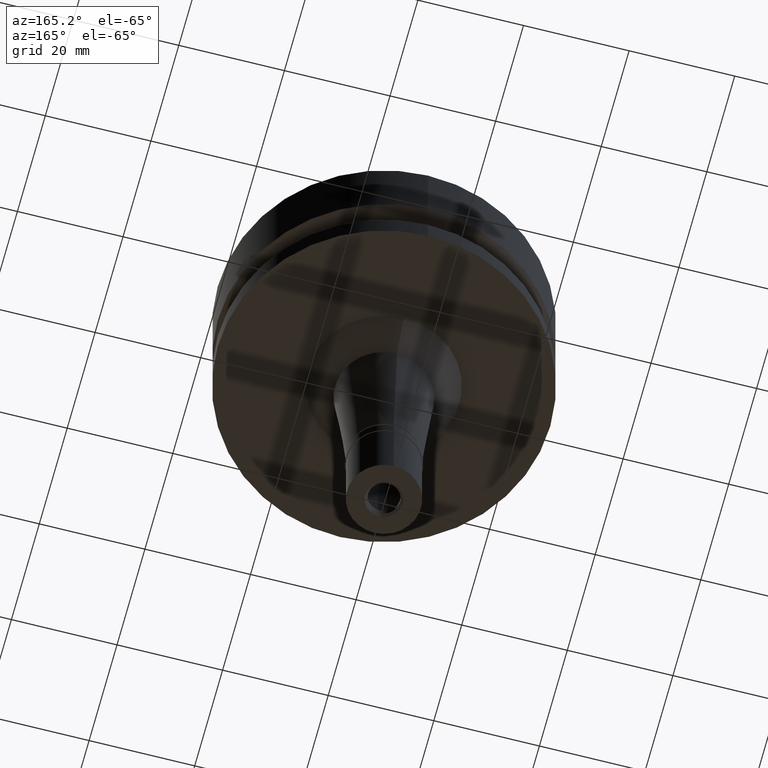
[diagram: clean part render]
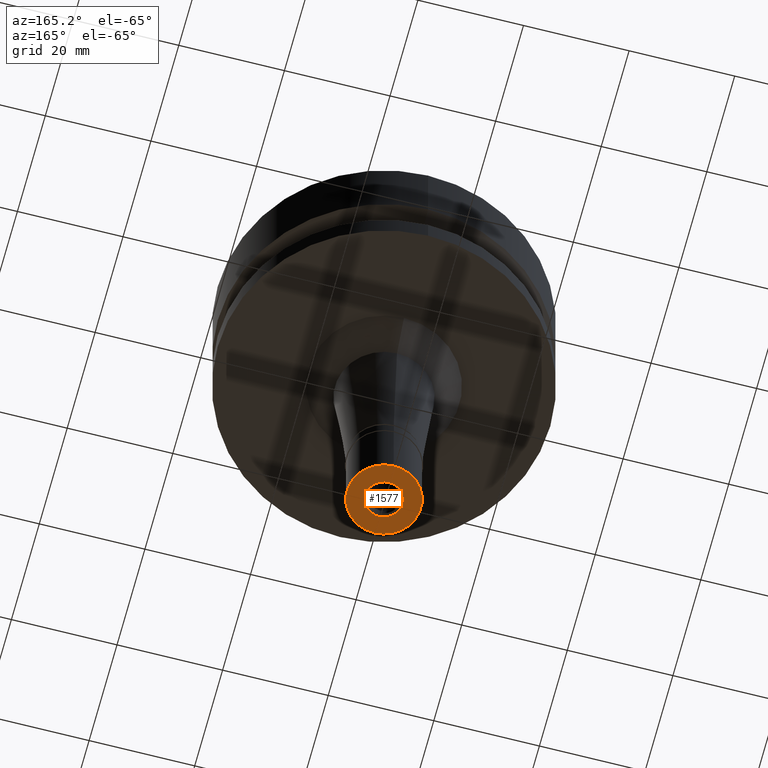
[diagram: same view with one face highlighted and labeled with its STEP entity id]
A machine part, auxiliary view. The second image highlights one B-rep face of the part: STEP entity #1577.
In plain terms, the highlighted planar face has unit normal (0, 0, 1).
Its self-contained STEP definition (entity closure, byte-faithful):
#131 = ORIENTED_EDGE ( 'NONE', *, *, #770, .F. ) ;
#138 = DIRECTION ( 'NONE',  ( 0.0000000000000000000, 0.0000000000000000000, -1.000000000000000000 ) ) ;
#189 = AXIS2_PLACEMENT_3D ( 'NONE', #1529, #1367, #1144 ) ;
#211 = ORIENTED_EDGE ( 'NONE', *, *, #2379, .F. ) ;
#274 = AXIS2_PLACEMENT_3D ( 'NONE', #1849, #421, #2502 ) ;
#421 = DIRECTION ( 'NONE',  ( 0.0000000000000000000, 0.0000000000000000000, 1.000000000000000000 ) ) ;
#485 = EDGE_LOOP ( 'NONE', ( #2305, #2224 ) ) ;
#609 = CARTESIAN_POINT ( 'NONE',  ( 0.0000000000000000000, 7.000000000000000000, -17.00000000000000000 ) ) ;
#633 = EDGE_CURVE ( 'NONE', #1388, #2228, #2403, .T. ) ;
#764 = CIRCLE ( 'NONE', #274, 7.000000000000000000 ) ;
#770 = EDGE_CURVE ( 'NONE', #2638, #1613, #1443, .T. ) ;
#885 = CARTESIAN_POINT ( 'NONE',  ( 0.0000000000000000000, 0.0000000000000000000, -17.00000000000000000 ) ) ;
#904 = FACE_BOUND ( 'NONE', #2280, .T. ) ;
#1117 = CARTESIAN_POINT ( 'NONE',  ( 0.0000000000000000000, -3.550000000000000266, -17.00000000000000000 ) ) ;
#1144 = DIRECTION ( 'NONE',  ( 0.0000000000000000000, -1.000000000000000000, 0.0000000000000000000 ) ) ;
#1156 = DIRECTION ( 'NONE',  ( 0.0000000000000000000, 0.0000000000000000000, 1.000000000000000000 ) ) ;
#1270 = CARTESIAN_POINT ( 'NONE',  ( 0.0000000000000000000, -7.000000000000000000, -17.00000000000000000 ) ) ;
#1367 = DIRECTION ( 'NONE',  ( 0.0000000000000000000, 0.0000000000000000000, -1.000000000000000000 ) ) ;
#1388 = VERTEX_POINT ( 'NONE', #609 ) ;
#1443 = CIRCLE ( 'NONE', #1799, 3.550000000000000266 ) ;
#1514 = DIRECTION ( 'NONE',  ( 0.0000000000000000000, 0.0000000000000000000, 1.000000000000000000 ) ) ;
#1529 = CARTESIAN_POINT ( 'NONE',  ( 0.0000000000000000000, 0.0000000000000000000, -17.00000000000000000 ) ) ;
#1577 = ADVANCED_FACE ( 'NONE', ( #2368, #904 ), #2352, .F. ) ;
#1613 = VERTEX_POINT ( 'NONE', #1117 ) ;
#1799 = AXIS2_PLACEMENT_3D ( 'NONE', #2002, #138, #2633 ) ;
#1841 = AXIS2_PLACEMENT_3D ( 'NONE', #885, #1514, #2589 ) ;
#1849 = CARTESIAN_POINT ( 'NONE',  ( 0.0000000000000000000, 0.0000000000000000000, -17.00000000000000000 ) ) ;
#1953 = CARTESIAN_POINT ( 'NONE',  ( 0.0000000000000000000, 0.0000000000000000000, -17.00000000000000000 ) ) ;
#2002 = CARTESIAN_POINT ( 'NONE',  ( 0.0000000000000000000, 0.0000000000000000000, -17.00000000000000000 ) ) ;
#2096 = CARTESIAN_POINT ( 'NONE',  ( 0.0000000000000000000, 3.550000000000000266, -17.00000000000000000 ) ) ;
#2224 = ORIENTED_EDGE ( 'NONE', *, *, #2488, .F. ) ;
#2228 = VERTEX_POINT ( 'NONE', #1270 ) ;
#2263 = AXIS2_PLACEMENT_3D ( 'NONE', #1953, #1156, #2576 ) ;
#2280 = EDGE_LOOP ( 'NONE', ( #131, #211 ) ) ;
#2305 = ORIENTED_EDGE ( 'NONE', *, *, #633, .F. ) ;
#2352 = PLANE ( 'NONE',  #2263 ) ;
#2368 = FACE_OUTER_BOUND ( 'NONE', #485, .T. ) ;
#2379 = EDGE_CURVE ( 'NONE', #1613, #2638, #2629, .T. ) ;
#2403 = CIRCLE ( 'NONE', #1841, 7.000000000000000000 ) ;
#2488 = EDGE_CURVE ( 'NONE', #2228, #1388, #764, .T. ) ;
#2502 = DIRECTION ( 'NONE',  ( 0.0000000000000000000, -1.000000000000000000, 0.0000000000000000000 ) ) ;
#2576 = DIRECTION ( 'NONE',  ( 1.000000000000000000, 0.0000000000000000000, 0.0000000000000000000 ) ) ;
#2589 = DIRECTION ( 'NONE',  ( 0.0000000000000000000, 1.000000000000000000, 0.0000000000000000000 ) ) ;
#2629 = CIRCLE ( 'NONE', #189, 3.550000000000000266 ) ;
#2633 = DIRECTION ( 'NONE',  ( 0.0000000000000000000, 1.000000000000000000, 0.0000000000000000000 ) ) ;
#2638 = VERTEX_POINT ( 'NONE', #2096 ) ;